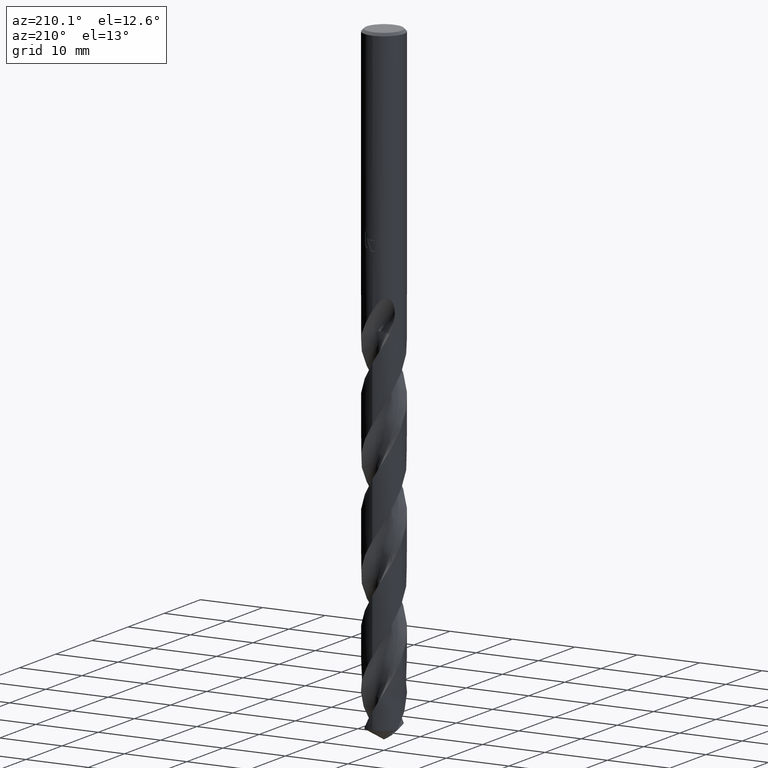
[diagram: clean part render]
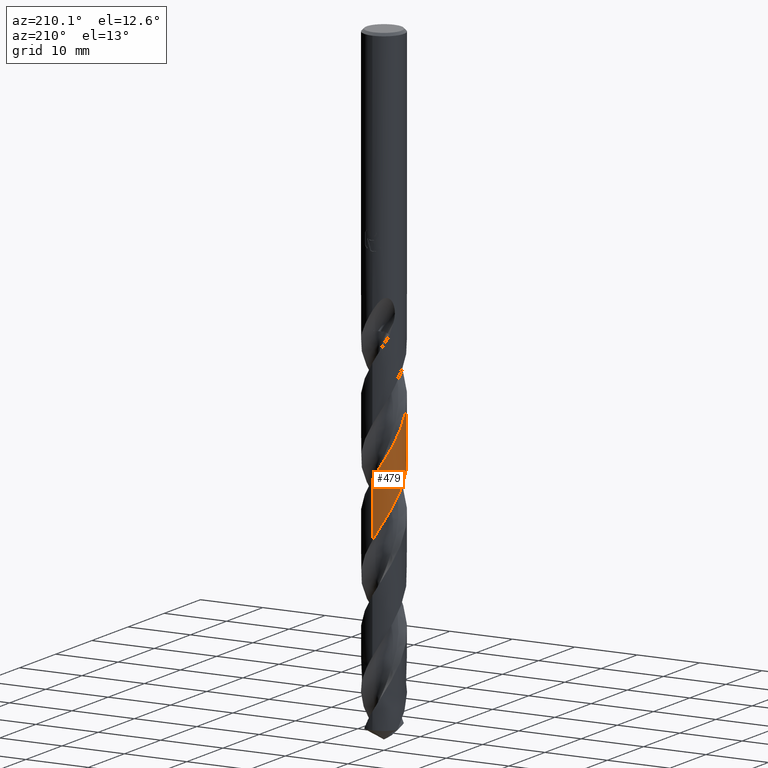
[diagram: same view with one face highlighted and labeled with its STEP entity id]
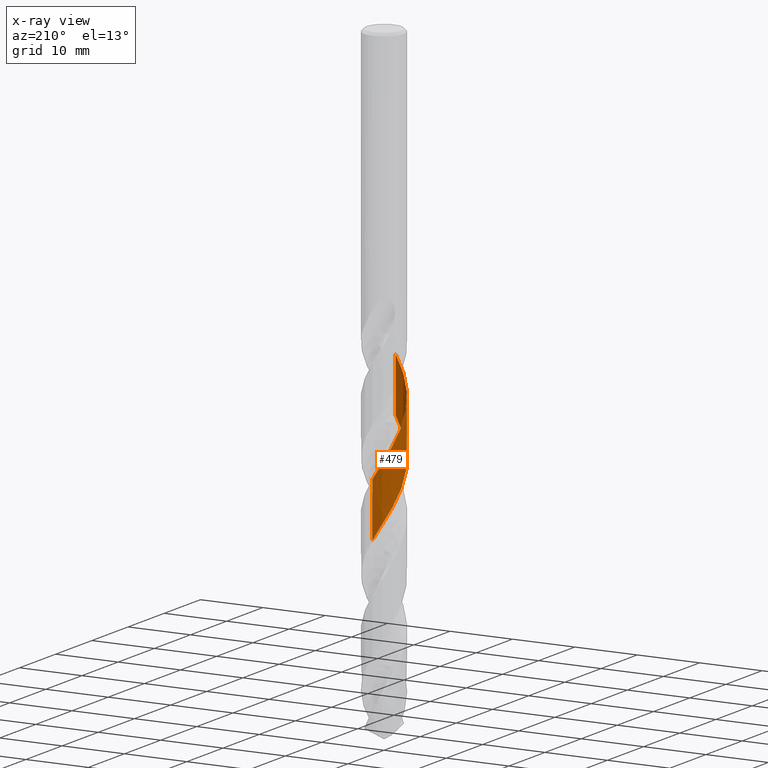
[diagram: x-ray of the same camera — body ghosted, the highlighted face saturated]
A machine part, auxiliary view. The second image highlights one B-rep face of the part: STEP entity #479.
The next image is the same camera in x-ray: the body ghosted, the highlighted face saturated — about 0% of this face is hidden behind the body in this view.
In plain terms, the highlighted conical surface has half-angle 0 deg.
Its self-contained STEP definition (entity closure, byte-faithful):
#277=VERTEX_POINT('',#776);
#309=EDGE_CURVE('',#277,#337,#811,.T.);
#337=VERTEX_POINT('',#842);
#479=ADVANCED_FACE('',(#998),#999,.T.);
#491=EDGE_CURVE('',#337,#537,#1012,.T.);
#529=EDGE_CURVE('',#647,#277,#1052,.T.);
#537=VERTEX_POINT('',#1060);
#647=VERTEX_POINT('',#1181);
#731=EDGE_CURVE('',#537,#647,#1273,.T.);
#776=CARTESIAN_POINT('',(-1.77375687130022E-014,3.19993655201892,-63.3948336357782));
#811=LINE('',#1556,#1557);
#842=CARTESIAN_POINT('',(2.74378557847152E-011,3.19995201855956,-72.0930376135942));
#998=FACE_OUTER_BOUND('',#4911,.T.);
#999=CONICAL_SURFACE('',#4912,3.19995,1.77813036857339E-006);
#1012=B_SPLINE_CURVE_WITH_KNOTS('',3,(#4927,#4928,#4929,#4930,#4931,#4932,#4933,#4934,#4935,#4936,#4937,#4938,#4939,#4940,#4941,#4942,#4943,#4944,#4945,#4946,#4947,#4948,#4949,#4950,#4951,#4952,#4953,#4954,#4955,#4956,#4957,#4958,#4959,#4960,#4961,#4962,#4963,#4964,#4965,#4966,#4967,#4968,#4969,#4970,#4971,#4972,#4973,#4974,#4975,#4976,#4977,#4978,#4979,#4980,#4981,#4982,#4983,#4984,#4985,#4986,#4987,#4988,#4989,#4990,#4991,#4992,#4993,#4994,#4995,#4996,#4997,#4998,#4999,#5000,#5001,#5002,#5003,#5004,#5005,#5006,#5007,#5008,#5009,#5010,#5011,#5012,#5013,#5014,#5015,#5016,#5017,#5018,#5019,#5020,#5021,#5022,#5023,#5024,#5025,#5026,#5027,#5028,#5029,#5030,#5031,#5032,#5033,#5034,#5035,#5036,#5037,#5038,#5039,#5040,#5041,#5042,#5043,#5044,#5045,#5046,#5047,#5048,#5049,#5050,#5051,#5052,#5053,#5054,#5055,#5056,#5057,#5058,#5059,#5060,#5061,#5062,#5063,#5064,#5065,#5066,#5067,#5068,#5069,#5070,#5071,#5072,#5073,#5074,#5075,#5076,#5077,#5078,#5079,#5080,#5081,#5082,#5083,#5084),.UNSPECIFIED.,.F.,.F.,(4,2,2,2,2,2,2,2,2,2,2,2,2,2,2,2,2,2,2,2,2,2,2,2,2,2,2,2,2,2,2,2,2,2,2,2,2,2,2,2,2,2,2,2,2,2,2,2,2,2,2,2,2,2,2,2,2,2,2,2,2,2,2,2,2,2,2,2,2,2,2,2,2,2,2,2,2,2,4),(0.0,1.02158665361462,1.55397234841336,2.60050687630304,3.65601461697102,4.73858148553917,5.54847978221554,6.04845092517843,6.41190591526302,7.45010587250597,7.98306686772581,9.00427598330776,10.0600706355678,11.1039612175403,12.1588949995806,13.2055168909178,14.2597261714121,14.5234841989478,15.3115362862171,16.3641253675103,17.414373506207,18.4665784765024,19.4904971618493,20.5416091474521,21.5375570846776,22.4791178523779,23.0123547780932,23.9108937997232,24.966821463154,26.0129844007481,27.068202326821,28.1169443127951,29.1715885553357,30.2227219534076,31.2768331244216,32.3059054310325,33.3590179906826,34.3643255629173,35.2476261602727,35.781774993091,36.7194990200755,37.5373352180286,38.0411539209826,38.4098158060679,39.4461419993606,40.0228796255236,41.0011647244621,42.0600534788737,43.1085845168671,44.1667463162841,45.2178814024716,46.2754534991137,47.2400355105852,48.2904728372806,48.7570486823175,49.1139636450451,50.1575802039014,50.693307026407,51.7131868680031,52.7743676917797,53.823934751034,54.8842178282245,55.9368381761949,56.9968905691963,58.0136812609273,58.9342582571643,60.6203687736454,61.2464143207244,62.1220788278327,62.569446902131,64.5089521046816,65.2497724306409,65.5552933296244,65.7751280825592,65.9465227948742,66.133228708446,66.4337997946839,67.2203257701303,68.4996203877012),.UNSPECIFIED.);
#1052=B_SPLINE_CURVE_WITH_KNOTS('',3,(#5311,#5312,#5313,#5314,#5315,#5316,#5317,#5318,#5319,#5320,#5321,#5322,#5323,#5324,#5325,#5326,#5327,#5328,#5329,#5330,#5331,#5332,#5333,#5334,#5335,#5336,#5337,#5338,#5339,#5340,#5341,#5342,#5343,#5344,#5345,#5346,#5347,#5348,#5349,#5350,#5351,#5352,#5353,#5354,#5355,#5356,#5357,#5358,#5359,#5360,#5361,#5362,#5363,#5364,#5365,#5366,#5367,#5368,#5369,#5370,#5371,#5372,#5373,#5374,#5375,#5376,#5377,#5378,#5379,#5380,#5381,#5382,#5383,#5384,#5385,#5386,#5387,#5388,#5389,#5390,#5391,#5392,#5393,#5394,#5395,#5396,#5397,#5398,#5399,#5400,#5401,#5402,#5403,#5404,#5405,#5406,#5407,#5408,#5409,#5410,#5411,#5412,#5413,#5414,#5415,#5416,#5417,#5418,#5419,#5420,#5421,#5422,#5423,#5424,#5425,#5426,#5427,#5428,#5429,#5430,#5431,#5432,#5433,#5434,#5435,#5436,#5437,#5438,#5439,#5440,#5441,#5442,#5443,#5444,#5445,#5446,#5447,#5448,#5449,#5450,#5451,#5452,#5453,#5454,#5455,#5456,#5457,#5458,#5459,#5460,#5461,#5462,#5463,#5464,#5465,#5466,#5467,#5468,#5469,#5470,#5471,#5472,#5473,#5474,#5475,#5476,#5477,#5478,#5479,#5480,#5481,#5482,#5483,#5484,#5485,#5486,#5487,#5488,#5489,#5490),.UNSPECIFIED.,.F.,.F.,(4,2,2,2,2,2,2,2,2,2,2,2,2,2,2,2,2,2,2,2,2,2,2,2,2,2,2,2,2,2,2,2,2,2,2,2,2,2,2,2,2,2,2,2,2,2,2,2,2,2,2,2,2,2,2,2,2,2,2,2,2,2,2,2,2,2,2,2,2,2,2,2,2,2,2,2,2,2,2,2,2,2,2,2,2,2,2,2,2,4),(0.0,0.162508175810115,0.262962250877528,0.278276470824715,0.287289467820792,0.292621481380645,0.29683717439293,0.300380380231635,0.303383865524278,0.305947729831449,0.308149082211715,0.310048415390059,0.696918593248938,0.787799800236431,0.837480276876894,0.879145618303801,0.928477862100543,1.01780119978516,1.13766683183961,1.62962182082104,1.93806695013653,2.56079522128451,4.15598986753721,4.19252389558001,5.35347777833465,5.9130074187368,6.60234821502191,7.85262273210907,9.16035486716343,10.2656543062577,10.5072976486892,12.2777158404852,12.7771668176785,13.8075860350412,14.9160562941747,16.1782474541785,16.8418593665183,17.8688903347762,18.427707455709,18.9599744653026,19.9491526814468,20.5077394654143,21.0341974563025,22.0324881935921,22.5907319573997,23.1088623889747,24.1167827748012,25.2285403210806,26.424462132435,27.1991272498725,28.2411937543271,28.7992560597224,29.3166948078374,30.3254077491191,31.4366793821122,32.6384294810615,33.4012880355914,34.441387993118,34.9993177758748,35.5179595296976,36.5189161353628,37.6309311677315,38.813820325743,39.6155771344861,40.6708012780236,41.7809199036505,42.9908757793451,43.7357071520201,44.7674945364576,45.3254033182524,45.8511151204855,46.8474440030905,47.4050407627716,47.9231458159772,48.9291248458157,50.0396929250409,51.2350632219863,52.0073975962409,53.0470817924844,53.6044976963053,54.122214154831,55.1251365993473,56.2357381722795,57.4294468150279,58.2085945357019,59.2491982780268,60.4409905697767,61.331128698023,62.6769928835442,64.0221890127032),.UNSPECIFIED.);
#1060=CARTESIAN_POINT('',(-4.14049197215252E-012,-3.19992267071848,-55.5881504597243));
#1181=CARTESIAN_POINT('',(-8.48902749690815E-013,-3.19990720522995,-46.8905381779976));
#1273=LINE('',#8681,#8682);
#1556=CARTESIAN_POINT('',(-3.92091494697818E-016,3.19995,-70.9578230095559));
#1557=VECTOR('',#8797,1.0);
#4911=EDGE_LOOP('',(#9040,#9041,#9042,#9043));
#4912=AXIS2_PLACEMENT_3D('',#9044,#9045,#9046);
#4927=CARTESIAN_POINT('',(-2.91667535114104,1.31643643828571,-99.0772460191119));
#4928=CARTESIAN_POINT('',(-2.98922704131377,1.15569082401133,-98.7859437346212));
#4929=CARTESIAN_POINT('',(-3.04855483493951,0.988812961967622,-98.4963089093707));
#4930=CARTESIAN_POINT('',(-3.11745223132555,0.728024495914157,-98.0542165220331));
#4931=CARTESIAN_POINT('',(-3.13716530359107,0.637735069751191,-97.902963461199));
#4932=CARTESIAN_POINT('',(-3.18395318351043,0.367923340019046,-97.4536418267543));
#4933=CARTESIAN_POINT('',(-3.19969355465878,0.186847435492377,-97.1547598113868));
#4934=CARTESIAN_POINT('',(-3.20029244712111,-0.177876663463165,-96.5565825585276));
#4935=CARTESIAN_POINT('',(-3.18486935931122,-0.360663586067767,-96.2577695289575));
#4936=CARTESIAN_POINT('',(-3.12217720750723,-0.726094634898854,-95.6492941375647));
#4937=CARTESIAN_POINT('',(-3.07425249502129,-0.907850580085873,-95.3398832135972));
#4938=CARTESIAN_POINT('',(-2.96299488045682,-1.21669616092334,-94.8013001060578));
#4939=CARTESIAN_POINT('',(-2.90671195977559,-1.34563830107573,-94.5715772531011));
#4940=CARTESIAN_POINT('',(-2.80221524236397,-1.5476006203147,-94.1989384791503));
#4941=CARTESIAN_POINT('',(-2.75926325440741,-1.62293007877483,-94.0568199129243));
#4942=CARTESIAN_POINT('',(-2.6800189920767,-1.74968510090821,-93.8109405691409));
#4943=CARTESIAN_POINT('',(-2.64515146118919,-1.80195941442035,-93.7072754098544));
#4944=CARTESIAN_POINT('',(-2.50487450212343,-1.99943188588005,-93.308446234467));
#4945=CARTESIAN_POINT('',(-2.38868020345982,-2.13695188165947,-93.0146351274763));
#4946=CARTESIAN_POINT('',(-2.1958611457369,-2.32952029647524,-92.568283973011));
#4947=CARTESIAN_POINT('',(-2.1277096494268,-2.39192220017363,-92.4170465403589));
#4948=CARTESIAN_POINT('',(-1.92157124216958,-2.56490723332139,-91.9752447857798));
#4949=CARTESIAN_POINT('',(-1.77697463870314,-2.66713233198641,-91.683732896633));
#4950=CARTESIAN_POINT('',(-1.46687323359859,-2.84985388429233,-91.0932659520374));
#4951=CARTESIAN_POINT('',(-1.30160134340257,-2.92902561928109,-90.7947466150358));
#4952=CARTESIAN_POINT('',(-0.96132332972806,-3.05752477063829,-90.1978401797434));
#4953=CARTESIAN_POINT('',(-0.787174863151849,-3.1069215217561,-89.8998433023622));
#4954=CARTESIAN_POINT('',(-0.430202796021456,-3.17619585418618,-89.3031731032623));
#4955=CARTESIAN_POINT('',(-0.248138077254766,-3.19557753801057,-89.0049029203892));
#4956=CARTESIAN_POINT('',(0.115875225748834,-3.20301891141783,-88.407539433278));
#4957=CARTESIAN_POINT('',(0.296969331415006,-3.19132318391702,-88.1087928348197));
#4958=CARTESIAN_POINT('',(0.656773985875116,-3.13717288831826,-87.5116320975644));
#4959=CARTESIAN_POINT('',(0.83468236712137,-3.09459613731365,-87.2136115155578));
#4960=CARTESIAN_POINT('',(1.05138506215567,-3.02267069303038,-86.8390774382742));
#4961=CARTESIAN_POINT('',(1.09440463174475,-3.00736090780244,-86.7641289138183));
#4962=CARTESIAN_POINT('',(1.26445777310369,-2.94271677855602,-86.4650520716982));
#4963=CARTESIAN_POINT('',(1.38875776442058,-2.88615015675156,-86.2400329131374));
#4964=CARTESIAN_POINT('',(1.67007890237719,-2.73568444771215,-85.716359217661));
#4965=CARTESIAN_POINT('',(1.82333232419314,-2.63602386210766,-85.4185309780438));
#4966=CARTESIAN_POINT('',(2.110936084697,-2.4118367635072,-84.8204726552948));
#4967=CARTESIAN_POINT('',(2.2445923401547,-2.28795572435931,-84.5205227439651));
#4968=CARTESIAN_POINT('',(2.4896860714073,-2.01854306305272,-83.922567682414));
#4969=CARTESIAN_POINT('',(2.60064078080355,-1.8734370941793,-83.6249537956596));
#4970=CARTESIAN_POINT('',(2.7940558055111,-1.56989791256406,-83.0347547139938));
#4971=CARTESIAN_POINT('',(2.8767048438545,-1.41272450352192,-82.7424807715607));
#4972=CARTESIAN_POINT('',(3.01694956180078,-1.08209070330759,-82.1526030200566));
#4973=CARTESIAN_POINT('',(3.07361892633564,-0.908763274585813,-81.8554438109622));
#4974=CARTESIAN_POINT('',(3.15470424851545,-0.563406772277039,-81.2738963705832));
#4975=CARTESIAN_POINT('',(3.1804407184429,-0.392704733344961,-80.9898871200382));
#4976=CARTESIAN_POINT('',(3.20356452704545,-0.0586593237296696,-80.439539568184));
#4977=CARTESIAN_POINT('',(3.20241643079323,0.10446826221015,-80.1732941197711));
#4978=CARTESIAN_POINT('',(3.18110101907552,0.359037370763001,-79.754800525993));
#4979=CARTESIAN_POINT('',(3.16942123478143,0.450599662773049,-79.6036453492219));
#4980=CARTESIAN_POINT('',(3.12755369082786,0.69447536023164,-79.1970160496083));
#4981=CARTESIAN_POINT('',(3.09015468954484,0.845532531122728,-78.9407418818777));
#4982=CARTESIAN_POINT('',(2.98508113549644,1.16725737993673,-78.385446409172));
#4983=CARTESIAN_POINT('',(2.91352873162237,1.33586481720321,-78.0870724643953));
#4984=CARTESIAN_POINT('',(2.74321599486476,1.65750667591224,-77.4898875167161));
#4985=CARTESIAN_POINT('',(2.64511004333023,1.80995726269209,-77.1914483962589));
#4986=CARTESIAN_POINT('',(2.42303375673852,2.09809993410281,-76.59446056848));
#4987=CARTESIAN_POINT('',(2.29933229622157,2.2329781660973,-76.2963163595438));
#4988=CARTESIAN_POINT('',(2.03106052447445,2.47941492976856,-75.6987176455809));
#4989=CARTESIAN_POINT('',(1.88727793833748,2.59053076296861,-75.3995870569556));
#4990=CARTESIAN_POINT('',(1.58141470180758,2.78785942468694,-74.8021479867961));
#4991=CARTESIAN_POINT('',(1.4198509823422,2.87351321097654,-74.5042296940539));
#4992=CARTESIAN_POINT('',(1.08435531906152,3.01612336534751,-73.9062970745373));
#4993=CARTESIAN_POINT('',(0.91132386689087,3.07282477092788,-73.6065702607631));
#4994=CARTESIAN_POINT('',(0.556916749011489,3.15638840034576,-73.0087843657472));
#4995=CARTESIAN_POINT('',(0.376163909445697,3.18299950757231,-72.711110801206));
#4996=CARTESIAN_POINT('',(0.0162764756592859,3.20486364736256,-72.119839588238));
#4997=CARTESIAN_POINT('',(-0.16186266295317,3.20080000618759,-71.8265498070001));
#4998=CARTESIAN_POINT('',(-0.519693971333868,3.16270876803335,-71.235568348078));
#4999=CARTESIAN_POINT('',(-0.698791561748988,3.12802990374974,-70.9383098434446));
#5000=CARTESIAN_POINT('',(-1.04139837104871,3.03074540023538,-70.3544295855506));
#5001=CARTESIAN_POINT('',(-1.20433633304165,2.96973942451476,-70.068164520535));
#5002=CARTESIAN_POINT('',(-1.49934135426089,2.8310568785197,-69.5325025960527));
#5003=CARTESIAN_POINT('',(-1.63264707826625,2.75635107519345,-69.2829707850085));
#5004=CARTESIAN_POINT('',(-1.8374113458039,2.62147162797999,-68.8813257959351));
#5005=CARTESIAN_POINT('',(-1.91225675739075,2.56737821140155,-68.7301334858543));
#5006=CARTESIAN_POINT('',(-2.11156959884352,2.4097980997387,-68.3127457442316));
#5007=CARTESIAN_POINT('',(-2.23079393634045,2.29988818421521,-68.0457113511493));
#5008=CARTESIAN_POINT('',(-2.4376761961872,2.07782723695662,-67.5477576527164));
#5009=CARTESIAN_POINT('',(-2.52712686187987,1.96806774135783,-67.3165605895319));
#5010=CARTESIAN_POINT('',(-2.65952087869607,1.78162327981894,-66.9418257931489));
#5011=CARTESIAN_POINT('',(-2.70699696989093,1.70861285592862,-66.7990928827645));
#5012=CARTESIAN_POINT('',(-2.78386591389005,1.57916660263451,-66.5514669464704));
#5013=CARTESIAN_POINT('',(-2.81465605472498,1.52360447539546,-66.4466644277163));
#5014=CARTESIAN_POINT('',(-2.92559172475031,1.30858215206239,-66.0482525716109));
#5015=CARTESIAN_POINT('',(-2.99415015876848,1.14314114376953,-65.7559634178655));
#5016=CARTESIAN_POINT('',(-3.07888292727031,0.877515292918029,-65.2992802118616));
#5017=CARTESIAN_POINT('',(-3.10469494959647,0.781269762094329,-65.1362148272229));
#5018=CARTESIAN_POINT('',(-3.16204301980654,0.519206668334105,-64.6956520496865));
#5019=CARTESIAN_POINT('',(-3.18503124413343,0.351748972998369,-64.4173254866883));
#5020=CARTESIAN_POINT('',(-3.20515869716679,0.000494483085172054,-63.8400819389553));
#5021=CARTESIAN_POINT('',(-3.19994953375439,-0.182613356478851,-63.5416721220306));
#5022=CARTESIAN_POINT('',(-3.15852619770765,-0.54413172454494,-62.9445656201533));
#5023=CARTESIAN_POINT('',(-3.12272421527775,-0.721772630936933,-62.646250741614));
#5024=CARTESIAN_POINT('',(-3.02091863222634,-1.07098597385033,-62.0493449335997));
#5025=CARTESIAN_POINT('',(-2.95485662020731,-1.24168600562856,-61.7511629289945));
#5026=CARTESIAN_POINT('',(-2.79483996237337,-1.56887941970047,-61.1536298705281));
#5027=CARTESIAN_POINT('',(-2.70146786557528,-1.7246888071733,-60.8546100769037));
#5028=CARTESIAN_POINT('',(-2.48856380664384,-2.01988313080532,-60.257240891977));
#5029=CARTESIAN_POINT('',(-2.36930404499971,-2.15854012333157,-59.9592832484941));
#5030=CARTESIAN_POINT('',(-2.11984742109948,-2.40281748426509,-59.3866012050739));
#5031=CARTESIAN_POINT('',(-1.99211059928346,-2.50971912943167,-59.1123166777902));
#5032=CARTESIAN_POINT('',(-1.70919794955406,-2.71126754942341,-58.5416973185289));
#5033=CARTESIAN_POINT('',(-1.55296861725499,-2.80369558224762,-58.245858024847));
#5034=CARTESIAN_POINT('',(-1.31706178445457,-2.91742465237283,-57.8165775120864));
#5035=CARTESIAN_POINT('',(-1.24330736134957,-2.94960492614681,-57.6846309992205));
#5036=CARTESIAN_POINT('',(-1.11131308220278,-3.00138067083521,-57.4513706452137));
#5037=CARTESIAN_POINT('',(-1.05356411192949,-3.02213381395223,-57.3501201248756));
#5038=CARTESIAN_POINT('',(-0.824731775276577,-3.09701916064793,-56.9536713696629));
#5039=CARTESIAN_POINT('',(-0.649535539365029,-3.13847829803547,-56.6598595563067));
#5040=CARTESIAN_POINT('',(-0.380002662985062,-3.17862465460591,-56.2135042170818));
#5041=CARTESIAN_POINT('',(-0.288105825619958,-3.18826295041515,-56.0622681752091));
#5042=CARTESIAN_POINT('',(-0.0206602092989385,-3.20467456279102,-55.6223421340288));
#5043=CARTESIAN_POINT('',(0.155228577207774,-3.20098712742256,-55.3327135527405));
#5044=CARTESIAN_POINT('',(0.512072238707907,-3.16397600572662,-54.7441453904622));
#5045=CARTESIAN_POINT('',(0.692043182160329,-3.12953884013223,-54.4456508893449));
#5046=CARTESIAN_POINT('',(1.04216055857088,-3.03085856540276,-53.8487025545913));
#5047=CARTESIAN_POINT('',(1.21164889016995,-2.96717257699307,-53.5506338922231));
#5048=CARTESIAN_POINT('',(1.54000895873508,-2.81091504451,-52.9539319616068));
#5049=CARTESIAN_POINT('',(1.69798551494845,-2.71840280605482,-52.6557007681557));
#5050=CARTESIAN_POINT('',(1.9953542799403,-2.508175062674,-52.0582322702905));
#5051=CARTESIAN_POINT('',(2.13418521273167,-2.39115152540617,-51.7593496755965));
#5052=CARTESIAN_POINT('',(2.39159614581512,-2.13379457910607,-51.161941672076));
#5053=CARTESIAN_POINT('',(2.50946473525177,-1.99384162670929,-50.8638187323645));
#5054=CARTESIAN_POINT('',(2.7157594445834,-1.70140935630392,-50.2766677141216));
#5055=CARTESIAN_POINT('',(2.80471817106577,-1.55036955483433,-49.9879543417261));
#5056=CARTESIAN_POINT('',(2.94990205261186,-1.25005425538299,-49.4402543243938));
#5057=CARTESIAN_POINT('',(3.00824750518847,-1.10231086919288,-49.1811331313358));
#5058=CARTESIAN_POINT('',(3.14182070830578,-0.67302188895771,-48.4447950836722));
#5059=CARTESIAN_POINT('',(3.18990720856457,-0.385075686332052,-47.9675862868598));
#5060=CARTESIAN_POINT('',(3.20169826861685,0.0130702100357125,-47.3143079806506));
#5061=CARTESIAN_POINT('',(3.19943841938023,0.120937997499916,-47.1378000434369));
#5062=CARTESIAN_POINT('',(3.18097290710258,0.378887235466541,-46.7136008257794));
#5063=CARTESIAN_POINT('',(3.15959425215116,0.528099168296887,-46.4650924350712));
#5064=CARTESIAN_POINT('',(3.11177601917124,0.749750496360869,-46.091797242914));
#5065=CARTESIAN_POINT('',(3.09288434363769,0.82425219600666,-45.9656877973355));
#5066=CARTESIAN_POINT('',(2.97756554082117,1.21858179661843,-45.2933034976415));
#5067=CARTESIAN_POINT('',(2.84505745466637,1.48703803487048,-44.8193517662858));
#5068=CARTESIAN_POINT('',(2.65554065292902,1.78805632587459,-44.221232482452));
#5069=CARTESIAN_POINT('',(2.60055437937136,1.86690263765505,-44.055626480241));
#5070=CARTESIAN_POINT('',(2.52000094296741,1.97242719029092,-43.8183871891058));
#5071=CARTESIAN_POINT('',(2.50327030709334,1.99332719611142,-43.7692877622211));
#5072=CARTESIAN_POINT('',(2.48323176732547,2.01819437288317,-43.7118151471318));
#5073=CARTESIAN_POINT('',(2.47464963319068,2.02871119530167,-43.6878931663366));
#5074=CARTESIAN_POINT('',(2.45900572066416,2.04762684636566,-43.6455279852403));
#5075=CARTESIAN_POINT('',(2.4520285684691,2.05597815975762,-43.6270470371733));
#5076=CARTESIAN_POINT('',(2.43718246830008,2.07356073326392,-43.5885899391103));
#5077=CARTESIAN_POINT('',(2.42929252390696,2.08280041572889,-43.5686354500299));
#5078=CARTESIAN_POINT('',(2.40829552919724,2.10710056707337,-43.5167945168992));
#5079=CARTESIAN_POINT('',(2.39495146607338,2.12226271571766,-43.4850779956213));
#5080=CARTESIAN_POINT('',(2.34519030541117,2.1776944566571,-43.3712359983839));
#5081=CARTESIAN_POINT('',(2.30650645819409,2.21875570430166,-43.2908703788305));
#5082=CARTESIAN_POINT('',(2.19699022272958,2.32847873127713,-43.0840229156923));
#5083=CARTESIAN_POINT('',(2.12204282445875,2.39747580604072,-42.9617924767989));
#5084=CARTESIAN_POINT('',(2.0390575965233,2.46609087118845,-42.8434));
#5311=CARTESIAN_POINT('',(2.22417678121337,-2.30052118286481,-42.8434));
#5312=CARTESIAN_POINT('',(2.20492247880304,-2.31913663426268,-42.8904856648115));
#5313=CARTESIAN_POINT('',(2.18536238994616,-2.33758095165995,-42.9376410928364));
#5314=CARTESIAN_POINT('',(2.1531225277864,-2.36721465435954,-43.0138718119343));
#5315=CARTESIAN_POINT('',(2.14068763615581,-2.37846656598395,-43.0429302173311));
#5316=CARTESIAN_POINT('',(2.126172956116,-2.39139245826646,-43.0764107837617));
#5317=CARTESIAN_POINT('',(2.12424962625317,-2.39310110994416,-43.0808385637491));
#5318=CARTESIAN_POINT('',(2.12118887630889,-2.39581361874608,-43.087870868863));
#5319=CARTESIAN_POINT('',(2.12005374164529,-2.39681816386774,-43.0904758844063));
#5320=CARTESIAN_POINT('',(2.11824517671304,-2.39841637374633,-43.0946214816743));
#5321=CARTESIAN_POINT('',(2.11757252748189,-2.39901028336458,-43.0961622601531));
#5322=CARTESIAN_POINT('',(2.11636731129667,-2.40007351593604,-43.0989210209925));
#5323=CARTESIAN_POINT('',(2.11583490341434,-2.40054288734125,-43.1001390413719));
#5324=CARTESIAN_POINT('',(2.11485453821701,-2.40140659868378,-43.1023806424921));
#5325=CARTESIAN_POINT('',(2.11440665911386,-2.40180096215192,-43.1034042416604));
#5326=CARTESIAN_POINT('',(2.11357878411674,-2.40252950585207,-43.1052954185248));
#5327=CARTESIAN_POINT('',(2.11319884111617,-2.40286370214333,-43.1061630091892));
#5328=CARTESIAN_POINT('',(2.11249432198799,-2.40348309782964,-43.1077711273565));
#5329=CARTESIAN_POINT('',(2.11216978255022,-2.40376830834036,-43.1085116639143));
#5330=CARTESIAN_POINT('',(2.11156641168602,-2.40429834382787,-43.1098879762495));
#5331=CARTESIAN_POINT('',(2.1112876060205,-2.40454317679045,-43.1105237588367));
#5332=CARTESIAN_POINT('',(2.11076811327613,-2.40499920886593,-43.1117080561265));
#5333=CARTESIAN_POINT('',(2.11052744480808,-2.40521041359353,-43.1122565754566));
#5334=CARTESIAN_POINT('',(2.06125478360927,-2.44843779689894,-43.2245282356422));
#5335=CARTESIAN_POINT('',(2.01123647563858,-2.48974543014388,-43.3327240930279));
#5336=CARTESIAN_POINT('',(1.9454316154316,-2.54065217657656,-43.4683944771115));
#5337=CARTESIAN_POINT('',(1.93281054449365,-2.55026754354141,-43.494139510707));
#5338=CARTESIAN_POINT('',(1.91310437615628,-2.56504880575074,-43.5339525701597));
#5339=CARTESIAN_POINT('',(1.90610924604077,-2.57025132327848,-43.5480115563523));
#5340=CARTESIAN_POINT('',(1.89318812919435,-2.57977919776562,-43.573855373999));
#5341=CARTESIAN_POINT('',(1.88727423237061,-2.58410880575724,-43.5856361623148));
#5342=CARTESIAN_POINT('',(1.87431186312928,-2.59353028051794,-43.611361177026));
#5343=CARTESIAN_POINT('',(1.86725810828947,-2.59861345022088,-43.6252981486148));
#5344=CARTESIAN_POINT('',(1.84735486958089,-2.61283327296346,-43.6644670394523));
#5345=CARTESIAN_POINT('',(1.83445646742979,-2.62190545945318,-43.6896687204527));
#5346=CARTESIAN_POINT('',(1.80406851891798,-2.64294450770742,-43.7487120845149));
#5347=CARTESIAN_POINT('',(1.78628733190171,-2.65499893578079,-43.7830277728113));
#5348=CARTESIAN_POINT('',(1.6939592092226,-2.71621228244633,-43.960920754644));
#5349=CARTESIAN_POINT('',(1.61818626275766,-2.76198487898645,-44.1051032626506));
#5350=CARTESIAN_POINT('',(1.49296639419931,-2.8308056030314,-44.3392623061781));
#5351=CARTESIAN_POINT('',(1.44410182829265,-2.85603968068922,-44.429668290439));
#5352=CARTESIAN_POINT('',(1.2949185041603,-2.92828535564077,-44.702426192755));
#5353=CARTESIAN_POINT('',(1.19264758770102,-2.97141046553451,-44.8849447073083));
#5354=CARTESIAN_POINT('',(0.821116015698956,-3.10578561491676,-45.5346781471511));
#5355=CARTESIAN_POINT('',(0.542240233259422,-3.16641138805692,-45.9973012462361));
#5356=CARTESIAN_POINT('',(0.252448968913209,-3.18993938647463,-46.4751400377033));
#5357=CARTESIAN_POINT('',(0.245959305198235,-3.19044634792172,-46.4858394095024));
#5358=CARTESIAN_POINT('',(0.033222652226734,-3.20641215168225,-46.8364976764449));
#5359=CARTESIAN_POINT('',(-0.174209139423947,-3.20186883495923,-47.1758205151221));
#5360=CARTESIAN_POINT('',(-0.47899860973976,-3.16542906342038,-47.679359303273));
#5361=CARTESIAN_POINT('',(-0.577497630247545,-3.14894794662146,-47.8430329339666));
#5362=CARTESIAN_POINT('',(-0.795234846380757,-3.10195741072183,-48.2085843337643));
#5363=CARTESIAN_POINT('',(-0.913766145753871,-3.06912754942561,-48.4102032913637));
#5364=CARTESIAN_POINT('',(-1.24100038734867,-2.95786830036883,-48.9781452995845));
#5365=CARTESIAN_POINT('',(-1.44399378998676,-2.86427414259463,-49.3433855568665));
#5366=CARTESIAN_POINT('',(-1.83621482380033,-2.6310047129547,-50.0921096217012));
#5367=CARTESIAN_POINT('',(-2.0230116265912,-2.49022315908983,-50.4738179412737));
#5368=CARTESIAN_POINT('',(-2.33627860899175,-2.19546723047172,-51.1803414788478));
#5369=CARTESIAN_POINT('',(-2.46705059213033,-2.04743741632422,-51.5031000394951));
#5370=CARTESIAN_POINT('',(-2.60884342352616,-1.85344473613484,-51.897349397376));
#5371=CARTESIAN_POINT('',(-2.6335689197916,-1.81814073759669,-51.9680524902828));
#5372=CARTESIAN_POINT('',(-2.83343532888891,-1.52013198866327,-52.5571319638725));
#5373=CARTESIAN_POINT('',(-2.96959412573344,-1.23320326741923,-53.0734124231068));
#5374=CARTESIAN_POINT('',(-3.08743327803037,-0.845684738664978,-53.7379457686564));
#5375=CARTESIAN_POINT('',(-3.10977750551168,-0.759408043717384,-53.8840755320577));
#5376=CARTESIAN_POINT('',(-3.16709424350233,-0.492709207006861,-54.3321246250476));
#5377=CARTESIAN_POINT('',(-3.19016684207709,-0.310035695409577,-54.6335739804723));
#5378=CARTESIAN_POINT('',(-3.20523495278285,0.0712450612669575,-55.2599024009493));
#5379=CARTESIAN_POINT('',(-3.19470918702231,0.269081687797673,-55.5833566706258));
#5380=CARTESIAN_POINT('',(-3.13333055117542,0.687318004014735,-56.2777215922102));
#5381=CARTESIAN_POINT('',(-3.07723406242547,0.906027850690517,-56.6465762888724));
#5382=CARTESIAN_POINT('',(-2.95725400709564,1.22808704688681,-57.2104918656197));
#5383=CARTESIAN_POINT('',(-2.90979626258897,1.33664554498038,-57.4045063941183));
#5384=CARTESIAN_POINT('',(-2.77388092547185,1.60582444077811,-57.8997100862303));
#5385=CARTESIAN_POINT('',(-2.67740882942519,1.76198607896371,-58.2002813242061));
#5386=CARTESIAN_POINT('',(-2.5086053680368,1.98906515661728,-58.6647689635852));
#5387=CARTESIAN_POINT('',(-2.44540358819383,2.06627501330407,-58.8283093746595));
#5388=CARTESIAN_POINT('',(-2.31513504830215,2.21104535166786,-59.1478315600916));
#5389=CARTESIAN_POINT('',(-2.2484990114288,2.27877450600092,-59.3035691019899));
#5390=CARTESIAN_POINT('',(-2.0497582577746,2.46356945281349,-59.7492819852589));
#5391=CARTESIAN_POINT('',(-1.91079956735107,2.57284995315353,-60.0388105191296));
#5392=CARTESIAN_POINT('',(-1.68034109502769,2.72505961166195,-60.4921940234837));
#5393=CARTESIAN_POINT('',(-1.5946313559469,2.77608659269347,-60.6556846695479));
#5394=CARTESIAN_POINT('',(-1.42375007674502,2.86728693020085,-60.9734745769991));
#5395=CARTESIAN_POINT('',(-1.3389653402025,2.90784452401387,-61.1275370428886));
#5396=CARTESIAN_POINT('',(-1.08867148767023,3.01431273758549,-61.5742683941067));
#5397=CARTESIAN_POINT('',(-0.919224353802029,3.07023521003499,-61.8664840099952));
#5398=CARTESIAN_POINT('',(-0.649090683865451,3.13499419399923,-62.322483144917));
#5399=CARTESIAN_POINT('',(-0.551158442415314,3.1536869261211,-62.4858894621265));
#5400=CARTESIAN_POINT('',(-0.360919638994108,3.18086170907922,-62.8011739681503));
#5401=CARTESIAN_POINT('',(-0.268859755406369,3.18996052271534,-62.9528249561808));
#5402=CARTESIAN_POINT('',(0.00298352605100041,3.20498367082542,-63.3999858767198));
#5403=CARTESIAN_POINT('',(0.183092936858411,3.19975612272525,-63.6950375093071));
#5404=CARTESIAN_POINT('',(0.559005255534168,3.15697553127326,-64.3160743157415));
#5405=CARTESIAN_POINT('',(0.753601240262974,3.11625353604643,-64.6406260120976));
#5406=CARTESIAN_POINT('',(1.14702883646812,2.99490663486013,-65.3168893753087));
#5407=CARTESIAN_POINT('',(1.34419887792114,2.91175929376703,-65.6667101614359));
#5408=CARTESIAN_POINT('',(1.653113259648,2.74335071887359,-66.2440623124296));
#5409=CARTESIAN_POINT('',(1.77009224216581,2.66936560983238,-66.4705629388809));
#5410=CARTESIAN_POINT('',(2.03229993935698,2.47870379491384,-67.0029816405266));
#5411=CARTESIAN_POINT('',(2.17291499400389,2.35641369449041,-67.3080903393605));
#5412=CARTESIAN_POINT('',(2.37132124814619,2.15090781080523,-67.7770006909146));
#5413=CARTESIAN_POINT('',(2.43714573883055,2.07602962795783,-67.9404026317925));
#5414=CARTESIAN_POINT('',(2.55708376704345,1.92600911587598,-68.2555256910715));
#5415=CARTESIAN_POINT('',(2.61160978936501,1.85139738387744,-68.4070205719595));
#5416=CARTESIAN_POINT('',(2.76264757050208,1.62475830297851,-68.8543454833304));
#5417=CARTESIAN_POINT('',(2.84968341198938,1.46676476942524,-69.1497165754097));
#5418=CARTESIAN_POINT('',(3.00372164501003,1.12102122986617,-69.771029264511));
#5419=CARTESIAN_POINT('',(3.06741542019419,0.93271887249743,-70.0955385900412));
#5420=CARTESIAN_POINT('',(3.16284636744574,0.531110003907003,-70.7735704798573));
#5421=CARTESIAN_POINT('',(3.19134502531405,0.317908266830162,-71.1251879525053));
#5422=CARTESIAN_POINT('',(3.2026827040871,-0.0327864389058029,-71.70095776652));
#5423=CARTESIAN_POINT('',(3.19838300481128,-0.169059027498642,-71.924083429105));
#5424=CARTESIAN_POINT('',(3.16774662273339,-0.489438355410502,-72.4526204902423));
#5425=CARTESIAN_POINT('',(3.13401635613851,-0.672412925246252,-72.7572450278787));
#5426=CARTESIAN_POINT('',(3.05808638140832,-0.947491378504087,-73.2256783194502));
#5427=CARTESIAN_POINT('',(3.02710065147862,-1.04225880280212,-73.3890897309714));
#5428=CARTESIAN_POINT('',(2.95885957875141,-1.22206609512941,-73.7046192056732));
#5429=CARTESIAN_POINT('',(2.92225200145224,-1.30718331047493,-73.8565081692876));
#5430=CARTESIAN_POINT('',(2.80436986525401,-1.55150123329293,-74.302044166383));
#5431=CARTESIAN_POINT('',(2.71335804582058,-1.70568638414702,-74.5952413022342));
#5432=CARTESIAN_POINT('',(2.49501800329625,-2.01346835998321,-75.21468706311));
#5433=CARTESIAN_POINT('',(2.36531126486396,-2.16435745957615,-75.5395022696978));
#5434=CARTESIAN_POINT('',(2.07056216517843,-2.44889853550907,-76.2124223969482));
#5435=CARTESIAN_POINT('',(1.90443068079143,-2.5802217155703,-76.558665359599));
#5436=CARTESIAN_POINT('',(1.60591145310273,-2.77151840909944,-77.1404886891985));
#5437=CARTESIAN_POINT('',(1.48030252058299,-2.84059008326038,-77.3750259384024));
#5438=CARTESIAN_POINT('',(1.17970340070156,-2.98053019777009,-77.9195667709309));
#5439=CARTESIAN_POINT('',(1.00215659724034,-3.04482771699513,-78.2286905015558));
#5440=CARTESIAN_POINT('',(0.628271821510444,-3.14394152686959,-78.8636041449765));
#5441=CARTESIAN_POINT('',(0.432334833572941,-3.17681429572697,-79.1879391812886));
#5442=CARTESIAN_POINT('',(0.019195919542543,-3.20719290025639,-79.8683716452932));
#5443=CARTESIAN_POINT('',(-0.197403538800558,-3.20118144384329,-80.2225425634244));
#5444=CARTESIAN_POINT('',(-0.543799575175921,-3.15623001798472,-80.7957109778637));
#5445=CARTESIAN_POINT('',(-0.674545779052532,-3.1308908906565,-81.0136848449535));
#5446=CARTESIAN_POINT('',(-0.981682219181778,-3.05123858893532,-81.53475499527));
#5447=CARTESIAN_POINT('',(-1.15576298968621,-2.98964811515476,-81.8371052615384));
#5448=CARTESIAN_POINT('',(-1.41434097183645,-2.87217405480899,-82.3033279763689));
#5449=CARTESIAN_POINT('',(-1.50313164149985,-2.82672058926572,-82.4668152810014));
#5450=CARTESIAN_POINT('',(-1.67121832463547,-2.73050772474708,-82.7845673564008));
#5451=CARTESIAN_POINT('',(-1.75063486908393,-2.68028169989144,-82.9385953166848));
#5452=CARTESIAN_POINT('',(-1.97377315794528,-2.52501612476197,-83.3850666220712));
#5453=CARTESIAN_POINT('',(-2.11114255615143,-2.41134703897896,-83.6770579436027));
#5454=CARTESIAN_POINT('',(-2.30956645685369,-2.21712858626535,-84.1328378444205));
#5455=CARTESIAN_POINT('',(-2.3774869557799,-2.14413659060737,-84.2962502632294));
#5456=CARTESIAN_POINT('',(-2.50175489282777,-1.99740698206107,-84.6117150034523));
#5457=CARTESIAN_POINT('',(-2.55848646526988,-1.9242007885779,-84.7635395264859));
#5458=CARTESIAN_POINT('',(-2.71576024013132,-1.70199205685789,-85.2106590389606));
#5459=CARTESIAN_POINT('',(-2.80705739220294,-1.54680067929783,-85.505496360175));
#5460=CARTESIAN_POINT('',(-2.97073259624086,-1.20581417336144,-86.1263589786255));
#5461=CARTESIAN_POINT('',(-3.03976160135292,-1.01934264350051,-86.4509515294889));
#5462=CARTESIAN_POINT('',(-3.14630697608598,-0.621457669292751,-87.1275123999846));
#5463=CARTESIAN_POINT('',(-3.1807772376315,-0.410104327697657,-87.4775881740192));
#5464=CARTESIAN_POINT('',(-3.20241352306898,-0.0590220439372687,-88.0547845162279));
#5465=CARTESIAN_POINT('',(-3.20197684597567,0.0791396070613412,-88.2808747422979));
#5466=CARTESIAN_POINT('',(-3.18004217880754,0.402145644151175,-88.8125460022559));
#5467=CARTESIAN_POINT('',(-3.15133930597519,0.586070948812743,-89.1173221285917));
#5468=CARTESIAN_POINT('',(-3.08296478483692,0.863218498858765,-89.5859041910741));
#5469=CARTESIAN_POINT('',(-3.05459202854424,0.958798777697588,-89.7493119759045));
#5470=CARTESIAN_POINT('',(-2.99133904271308,1.14033209960257,-90.0647033248894));
#5471=CARTESIAN_POINT('',(-2.95711491397367,1.22634716380668,-90.2164590894089));
#5472=CARTESIAN_POINT('',(-2.84582540999846,1.47420950146462,-90.6627012823458));
#5473=CARTESIAN_POINT('',(-2.75880421626025,1.63127176837794,-90.9567343423246));
#5474=CARTESIAN_POINT('',(-2.54862130794958,1.9452138348348,-91.5768969240174));
#5475=CARTESIAN_POINT('',(-2.42309370882283,2.09950346105767,-91.9015931313531));
#5476=CARTESIAN_POINT('',(-2.13473079274037,2.39339594579969,-92.5778782770949));
#5477=CARTESIAN_POINT('',(-1.97044118753265,2.53038576302462,-92.9275779758418));
#5478=CARTESIAN_POINT('',(-1.67829982719337,2.72812327168606,-93.5064615603532));
#5479=CARTESIAN_POINT('',(-1.55798407185528,2.79857379354792,-93.7346127826954));
#5480=CARTESIAN_POINT('',(-1.2672154418666,2.94426523675052,-94.2687131802536));
#5481=CARTESIAN_POINT('',(-1.09395509516427,3.01294331946793,-94.5738415170835));
#5482=CARTESIAN_POINT('',(-0.711504001566006,3.12715912948463,-95.2290011519659));
#5483=CARTESIAN_POINT('',(-0.50181371136992,3.16757005620604,-95.5773649463547));
#5484=CARTESIAN_POINT('',(-0.131303745664244,3.20125421892952,-96.1885241072475));
#5485=CARTESIAN_POINT('',(0.0280033137431521,3.20382779272423,-96.4495998014621));
#5486=CARTESIAN_POINT('',(0.427084871940479,3.18048333464126,-97.1058924843796));
#5487=CARTESIAN_POINT('',(0.664922335625172,3.13938400844627,-97.4993338708656));
#5488=CARTESIAN_POINT('',(1.12669906281366,3.00472202340781,-98.2892484702387));
#5489=CARTESIAN_POINT('',(1.34929089843388,2.91158171310994,-98.6825222845773));
#5490=CARTESIAN_POINT('',(1.55940786948632,2.79432408581829,-99.0772460191119));
#8681=CARTESIAN_POINT('',(3.91644325684966E-016,-3.19995,-70.9578230095559));
#8682=VECTOR('',#9328,1.0);
#8797=DIRECTION('',(-2.17750974727836E-022,1.77813036857246E-006,-0.999999999998419));
#9040=ORIENTED_EDGE('',*,*,#309,.T.);
#9041=ORIENTED_EDGE('',*,*,#491,.T.);
#9042=ORIENTED_EDGE('',*,*,#731,.T.);
#9043=ORIENTED_EDGE('',*,*,#529,.T.);
#9044=CARTESIAN_POINT('',(0.0,0.0,-70.9578230095559));
#9045=DIRECTION('',(0.0,-0.0,-1.0));
#9046=DIRECTION('',(0.0,1.0,0.0));
#9328=DIRECTION('',(-2.17750974727836E-022,1.77813036857246E-006,0.999999999998419));